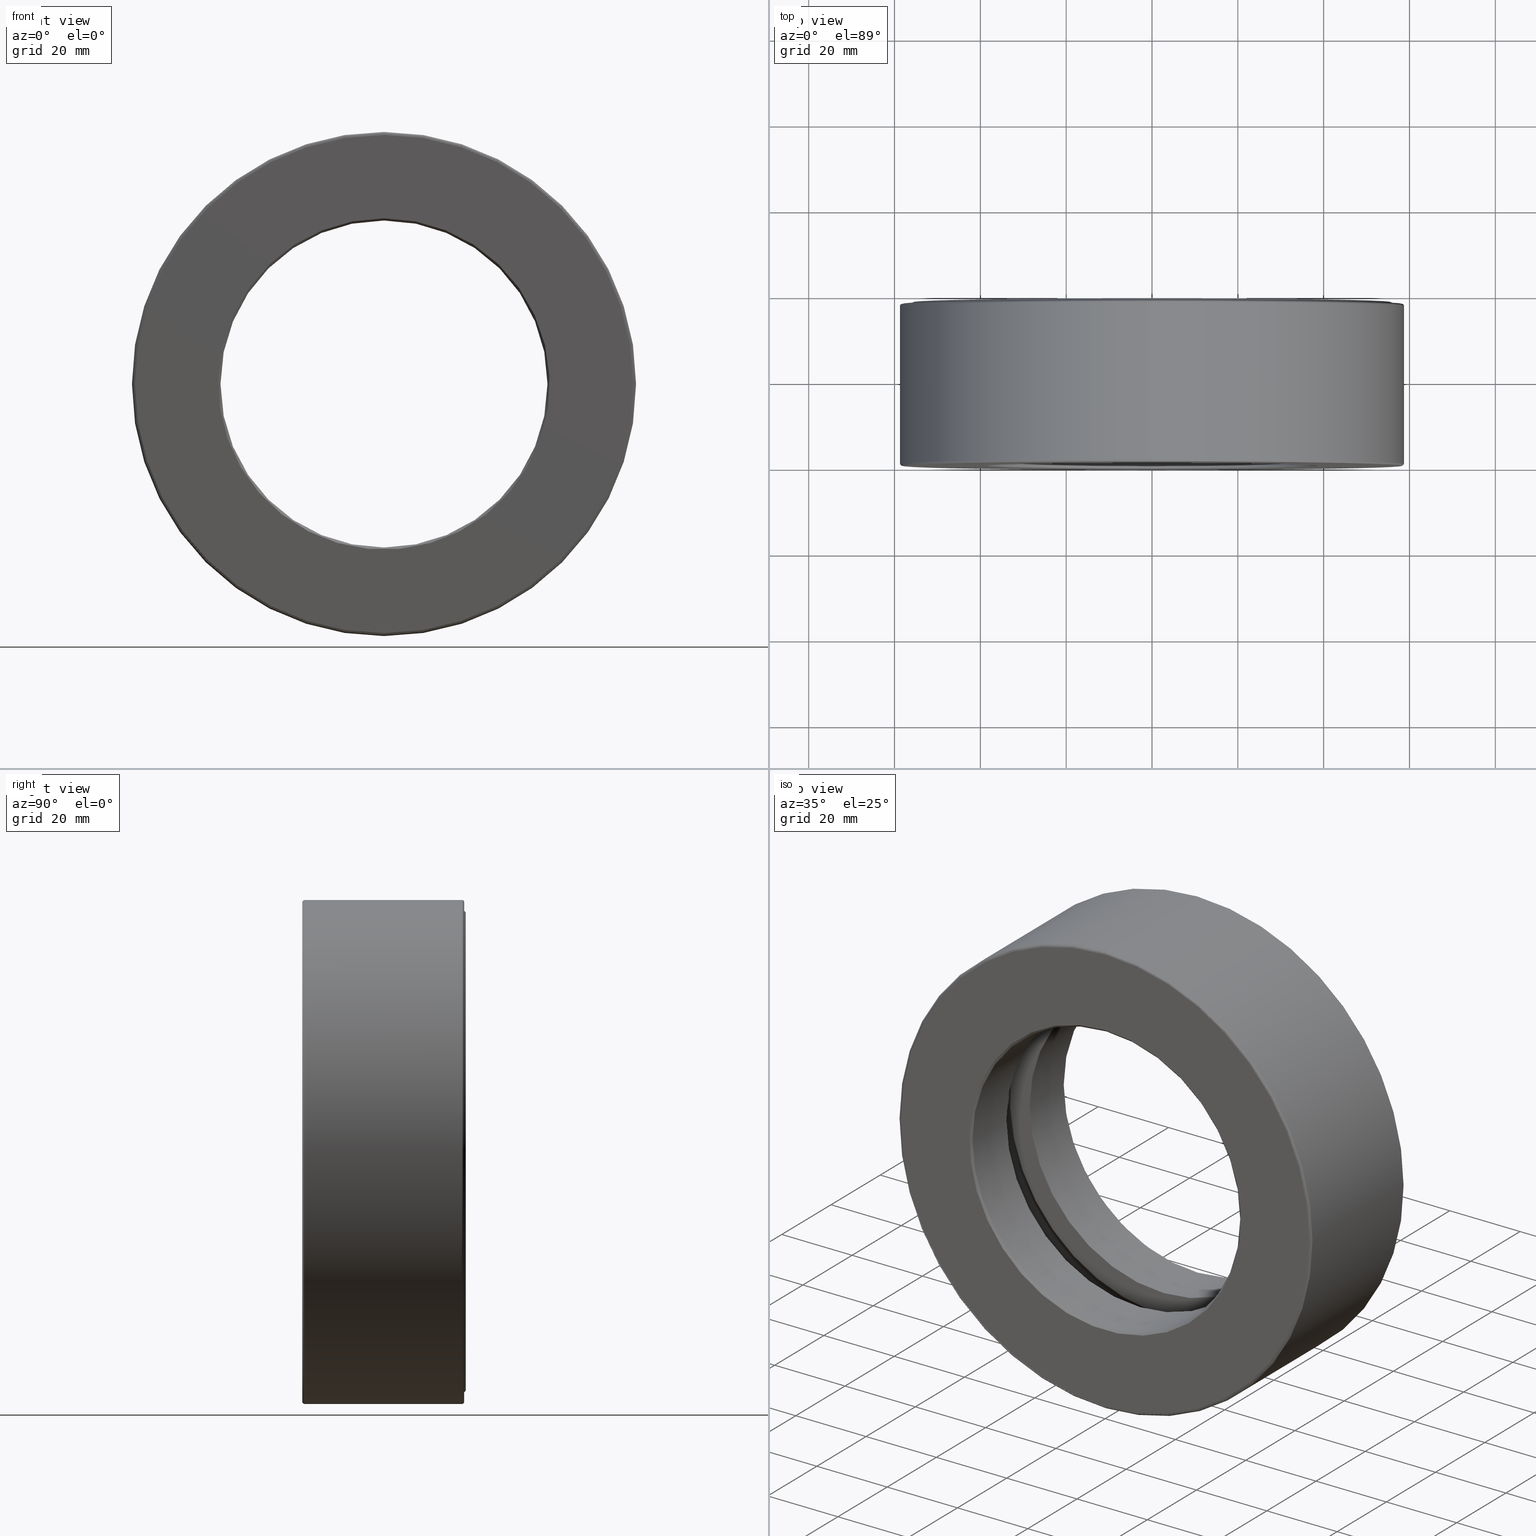
[diagram: canonical four-view strip — front | top / right | iso, engineering-drawing reading convention]
A machine part, canonical four-view strip (front | top / right | iso — engineering-drawing reading convention). The complete STEP part file that produces these views, byte-faithful:
ISO-10303-21;
HEADER;
FILE_DESCRIPTION (( 'STEP AP203' ),
    '1' );
FILE_NAME ('T-100-44.step',
    '2016-06-29T18:27:39',
    ( '' ),
    ( '' ),
    'SwSTEP 2.0',
    'SolidWorks 2016',
    '' );
FILE_SCHEMA (( 'CONFIG_CONTROL_DESIGN' ));
ENDSEC;

DATA;
#1 = APPROVAL_STATUS ( 'not_yet_approved' ) ;
#2 = CARTESIAN_POINT ( 'NONE',  ( 0.0000000000000000000, 1.464999999999999900, 0.0000000000000000000 ) ) ;
#3 = VERTEX_POINT ( 'NONE', #353 ) ;
#4 = VERTEX_POINT ( 'NONE', #88 ) ;
#5 = ORIENTED_EDGE ( 'NONE', *, *, #375, .T. ) ;
#6 = DESIGN_CONTEXT ( 'detailed design', #513, 'design' ) ;
#7 = AXIS2_PLACEMENT_3D ( 'NONE', #326, #370, #54 ) ;
#8 = MANIFOLD_SOLID_BREP ( 'Revolve3', #244 ) ;
#9 = FACE_BOUND ( 'NONE', #58, .T. ) ;
#10 = FACE_BOUND ( 'NONE', #459, .T. ) ;
#11 = CC_DESIGN_PERSON_AND_ORGANIZATION_ASSIGNMENT ( #533, #416, ( #201 ) ) ;
#12 = ORIENTED_EDGE ( 'NONE', *, *, #376, .T. ) ;
#13 = AXIS2_PLACEMENT_3D ( 'NONE', #74, #79, #82 ) ;
#14 = PERSON_AND_ORGANIZATION ( #343, #421 ) ;
#15 = FACE_OUTER_BOUND ( 'NONE', #413, .T. ) ;
#16 = EDGE_LOOP ( 'NONE', ( #5 ) ) ;
#17 = PLANE ( 'NONE',  #154 ) ;
#18 = EDGE_LOOP ( 'NONE', ( #267 ) ) ;
#19 = AXIS2_PLACEMENT_3D ( 'NONE', #312, #182, #395 ) ;
#20 = EDGE_LOOP ( 'NONE', ( #390 ) ) ;
#21 = PLANE ( 'NONE',  #112 ) ;
#22 = MANIFOLD_SOLID_BREP ( 'BALLS[1]', #469 ) ;
#23 = DIRECTION ( 'NONE',  ( 0.0000000000000000000, 0.0000000000000000000, 1.000000000000000000 ) ) ;
#24 = FACE_BOUND ( 'NONE', #292, .T. ) ;
#25 = TOROIDAL_SURFACE ( 'NONE', #593, 2.292500000000000000, 0.02000000000000005900 ) ;
#26 = EDGE_LOOP ( 'NONE', ( #235 ) ) ;
#27 = ORIENTED_EDGE ( 'NONE', *, *, #503, .F. ) ;
#28 = AXIS2_PLACEMENT_3D ( 'NONE', #507, #366, #553 ) ;
#29 = EDGE_CURVE ( 'NONE', #243, #243, #111, .T. ) ;
#30 = COORDINATED_UNIVERSAL_TIME_OFFSET ( 5, 0, .BEHIND. ) ;
#31 = DIRECTION ( 'NONE',  ( -0.0000000000000000000, 1.000000000000000000, -0.0000000000000000000 ) ) ;
#32 = FACE_BOUND ( 'NONE', #16, .T. ) ;
#33 = ORIENTED_EDGE ( 'NONE', *, *, #397, .T. ) ;
#34 = DIRECTION ( 'NONE',  ( -0.0000000000000000000, 1.000000000000000000, -0.0000000000000000000 ) ) ;
#35 = ADVANCED_FACE ( 'NONE', ( #529, #57 ), #114, .F. ) ;
#36 = CARTESIAN_POINT ( 'NONE',  ( 0.0000000000000000000, 1.500000000000000200, 2.197499999999999800 ) ) ;
#37 = ORIENTED_EDGE ( 'NONE', *, *, #29, .F. ) ;
#38 = AXIS2_PLACEMENT_3D ( 'NONE', #250, #335, #23 ) ;
#39 = APPLICATION_PROTOCOL_DEFINITION ( 'international standard', 'config_control_design', 1994, #393 ) ;
#40 = FACE_BOUND ( 'NONE', #523, .T. ) ;
#41 = CARTESIAN_POINT ( 'NONE',  ( 0.0000000000000000000, -1.252200340395746800E-016, 2.292499999999999500 ) ) ;
#42 = ORIENTED_EDGE ( 'NONE', *, *, #299, .F. ) ;
#43 = AXIS2_PLACEMENT_3D ( 'NONE', #266, #539, #591 ) ;
#44 = DIRECTION ( 'NONE',  ( 0.0000000000000000000, 0.0000000000000000000, 1.000000000000000000 ) ) ;
#45 = CARTESIAN_POINT ( 'NONE',  ( 0.0000000000000000000, -1.259211184579621700E-016, 0.0000000000000000000 ) ) ;
#46 = DIRECTION ( 'NONE',  ( -0.0000000000000000000, 1.000000000000000000, -0.0000000000000000000 ) ) ;
#47 = APPROVAL_DATE_TIME ( #453, #51 ) ;
#48 = DIRECTION ( 'NONE',  ( -0.0000000000000000000, 1.000000000000000000, -0.0000000000000000000 ) ) ;
#49 = VERTEX_POINT ( 'NONE', #77 ) ;
#50 = ORIENTED_EDGE ( 'NONE', *, *, #265, .T. ) ;
#51 = APPROVAL ( #322, 'UNSPECIFIED' ) ;
#52 = CARTESIAN_POINT ( 'NONE',  ( 0.0000000000000000000, 1.479999999999999300, 0.0000000000000000000 ) ) ;
#53 = EDGE_LOOP ( 'NONE', ( #368 ) ) ;
#54 = DIRECTION ( 'NONE',  ( 0.0000000000000000000, 0.0000000000000000000, -1.000000000000000000 ) ) ;
#55 = APPROVAL_PERSON_ORGANIZATION ( #209, #404, #501 ) ;
#56 = VERTEX_POINT ( 'NONE', #317 ) ;
#57 = FACE_BOUND ( 'NONE', #153, .T. ) ;
#58 = EDGE_LOOP ( 'NONE', ( #234 ) ) ;
#59 =( GEOMETRIC_REPRESENTATION_CONTEXT ( 3 ) GLOBAL_UNCERTAINTY_ASSIGNED_CONTEXT ( ( #515 ) ) GLOBAL_UNIT_ASSIGNED_CONTEXT ( ( #398, #130, #174 ) ) REPRESENTATION_CONTEXT ( 'NONE', 'WORKASPACE' ) );
#60 = LOCAL_TIME ( 14, 27, 39.00000000000000000, #427 ) ;
#61 = VERTEX_POINT ( 'NONE', #258 ) ;
#62 = EDGE_LOOP ( 'NONE', ( #12 ) ) ;
#63 = ORIENTED_EDGE ( 'NONE', *, *, #396, .T. ) ;
#64 = DIRECTION ( 'NONE',  ( 0.0000000000000000000, -1.000000000000000000, 0.0000000000000000000 ) ) ;
#65 = APPROVAL_DATE_TIME ( #470, #404 ) ;
#66 = EDGE_CURVE ( 'NONE', #61, #61, #333, .T. ) ;
#67 = EDGE_LOOP ( 'NONE', ( #138 ) ) ;
#68 = FACE_OUTER_BOUND ( 'NONE', #300, .T. ) ;
#69 = AXIS2_PLACEMENT_3D ( 'NONE', #565, #570, #475 ) ;
#70 = FACE_OUTER_BOUND ( 'NONE', #346, .T. ) ;
#71 = AXIS2_PLACEMENT_3D ( 'NONE', #256, #263, #536 ) ;
#72 = DIRECTION ( 'NONE',  ( 0.0000000000000000000, 0.0000000000000000000, 1.000000000000000000 ) ) ;
#73 = CARTESIAN_POINT ( 'NONE',  ( 0.0000000000000000000, 1.464999999999999900, 0.0000000000000000000 ) ) ;
#74 = CARTESIAN_POINT ( 'NONE',  ( 0.0000000000000000000, 0.0000000000000000000, 0.0000000000000000000 ) ) ;
#75 = PERSON_AND_ORGANIZATION ( #343, #421 ) ;
#76 = FACE_OUTER_BOUND ( 'NONE', #506, .T. ) ;
#77 = CARTESIAN_POINT ( 'NONE',  ( 0.0000000000000000000, 0.9374999999999998900, 1.720999999999999900 ) ) ;
#78 = AXIS2_PLACEMENT_3D ( 'NONE', #384, #576, #304 ) ;
#79 = DIRECTION ( 'NONE',  ( -0.0000000000000000000, 1.000000000000000000, -0.0000000000000000000 ) ) ;
#80 = CARTESIAN_POINT ( 'NONE',  ( 0.0000000000000000000, 1.500000000000000200, 1.520000000000000500 ) ) ;
#81 = ADVANCED_FACE ( 'NONE', ( ), #288, .T. ) ;
#82 = DIRECTION ( 'NONE',  ( 0.0000000000000000000, 0.0000000000000000000, 1.000000000000000000 ) ) ;
#83 = CARTESIAN_POINT ( 'NONE',  ( 0.0000000000000000000, -1.259211184579621700E-016, 2.297499999999999900 ) ) ;
#84 = AXIS2_PLACEMENT_3D ( 'NONE', #573, #342, #113 ) ;
#85 = VERTEX_POINT ( 'NONE', #80 ) ;
#86 = DIRECTION ( 'NONE',  ( 0.0000000000000000000, 0.0000000000000000000, 1.000000000000000000 ) ) ;
#87 = FACE_OUTER_BOUND ( 'NONE', #444, .T. ) ;
#88 = CARTESIAN_POINT ( 'NONE',  ( 0.0000000000000000000, 0.9374999999999998900, 2.221000000000000100 ) ) ;
#89 = DIRECTION ( 'NONE',  ( -0.0000000000000000000, 1.000000000000000000, -0.0000000000000000000 ) ) ;
#90 = CC_DESIGN_PERSON_AND_ORGANIZATION_ASSIGNMENT ( #155, #464, ( #568 ) ) ;
#91 = DIRECTION ( 'NONE',  ( 0.0000000000000000000, 0.0000000000000000000, 1.000000000000000000 ) ) ;
#92 = APPROVAL_ROLE ( '' ) ;
#93 = DIRECTION ( 'NONE',  ( -0.0000000000000000000, 1.000000000000000000, -0.0000000000000000000 ) ) ;
#94 = ADVANCED_FACE ( 'NONE', ( #405, #592 ), #480, .F. ) ;
#95 = SECURITY_CLASSIFICATION_LEVEL ( 'unclassified' ) ;
#96 = FACE_OUTER_BOUND ( 'NONE', #229, .T. ) ;
#97 = ADVANCED_FACE ( 'NONE', ( #485, #544 ), #339, .F. ) ;
#98 = DATE_TIME_ROLE ( 'classification_date' ) ;
#99 = CALENDAR_DATE ( 2016, 29, 6 ) ;
#100 = FACE_OUTER_BOUND ( 'NONE', #581, .T. ) ;
#101 = EDGE_LOOP ( 'NONE', ( #284 ) ) ;
#102 = ORIENTED_EDGE ( 'NONE', *, *, #336, .F. ) ;
#103 = AXIS2_PLACEMENT_3D ( 'NONE', #220, #89, #450 ) ;
#104 = VERTEX_POINT ( 'NONE', #169 ) ;
#105 = ORIENTED_EDGE ( 'NONE', *, *, #29, .T. ) ;
#106 = ORIENTED_EDGE ( 'NONE', *, *, #584, .F. ) ;
#107 = EDGE_LOOP ( 'NONE', ( #571 ) ) ;
#108 = DIRECTION ( 'NONE',  ( -0.0000000000000000000, 1.000000000000000000, 0.0000000000000000000 ) ) ;
#109 = DIRECTION ( 'NONE',  ( 0.0000000000000000000, -0.0000000000000000000, -1.000000000000000000 ) ) ;
#110 = CIRCLE ( 'NONE', #197, 2.197499999999999800 ) ;
#111 = CIRCLE ( 'NONE', #38, 2.292499999999999500 ) ;
#112 = AXIS2_PLACEMENT_3D ( 'NONE', #526, #301, #72 ) ;
#113 = DIRECTION ( 'NONE',  ( 0.0000000000000000000, -0.0000000000000000000, -1.000000000000000000 ) ) ;
#114 = PLANE ( 'NONE',  #249 ) ;
#115 = CC_DESIGN_DATE_AND_TIME_ASSIGNMENT ( #193, #144, ( #582 ) ) ;
#116 = CONICAL_SURFACE ( 'NONE', #239, 1.500000000000000200, 0.7853981633974346200 ) ;
#117 = CYLINDRICAL_SURFACE ( 'NONE', #13, 2.285499999999999400 ) ;
#118 = DIRECTION ( 'NONE',  ( -0.0000000000000000000, 1.000000000000000000, -0.0000000000000000000 ) ) ;
#119 = MANIFOLD_SOLID_BREP ( 'Revolve2[2]', #338 ) ;
#120 = AXIS2_PLACEMENT_3D ( 'NONE', #406, #355, #123 ) ;
#121 = DIRECTION ( 'NONE',  ( 0.0000000000000000000, 0.0000000000000000000, 1.000000000000000000 ) ) ;
#122 = DIRECTION ( 'NONE',  ( -0.0000000000000000000, 1.000000000000000000, -0.0000000000000000000 ) ) ;
#123 = DIRECTION ( 'NONE',  ( 1.000000000000000000, 0.0000000000000000000, 0.0000000000000000000 ) ) ;
#124 = CARTESIAN_POINT ( 'NONE',  ( 0.0000000000000000000, 0.005000000000000682700, 0.0000000000000000000 ) ) ;
#125 = CIRCLE ( 'NONE', #211, 1.500000000000000200 ) ;
#126 = EDGE_LOOP ( 'NONE', ( #157 ) ) ;
#127 = CARTESIAN_POINT ( 'NONE',  ( 0.0000000000000000000, 1.464999999999999900, 2.312500000000000000 ) ) ;
#128 = CIRCLE ( 'NONE', #103, 1.499999999999999800 ) ;
#129 = CARTESIAN_POINT ( 'NONE',  ( 1.970999999999999900, 0.7499999999999998900, -1.376341943771963100E-014 ) ) ;
#130 =( NAMED_UNIT ( * ) PLANE_ANGLE_UNIT ( ) SI_UNIT ( $, .RADIAN. ) );
#131 = ADVANCED_FACE ( 'NONE', ( #329, #315 ), #17, .F. ) ;
#132 = PRODUCT_RELATED_PRODUCT_CATEGORY ( 'detail', '', ( #527 ) ) ;
#133 = DIRECTION ( 'NONE',  ( 6.982962677686269100E-015, -0.0000000000000000000, 1.000000000000000000 ) ) ;
#134 = CARTESIAN_POINT ( 'NONE',  ( 0.0000000000000000000, 1.464999999999999900, 0.0000000000000000000 ) ) ;
#135 = ADVANCED_FACE ( 'NONE', ( #569, #96 ), #340, .F. ) ;
#136 = AXIS2_PLACEMENT_3D ( 'NONE', #435, #307, #392 ) ;
#137 = FACE_OUTER_BOUND ( 'NONE', #252, .T. ) ;
#138 = ORIENTED_EDGE ( 'NONE', *, *, #584, .T. ) ;
#139 = ADVANCED_FACE ( 'NONE', ( #298, #382 ), #21, .T. ) ;
#140 = DIRECTION ( 'NONE',  ( -0.0000000000000000000, 1.000000000000000000, -0.0000000000000000000 ) ) ;
#141 = ORIENTED_EDGE ( 'NONE', *, *, #299, .T. ) ;
#142 = CC_DESIGN_DATE_AND_TIME_ASSIGNMENT ( #541, #98, ( #201 ) ) ;
#143 = DIRECTION ( 'NONE',  ( 0.0000000000000000000, 0.0000000000000000000, 1.000000000000000000 ) ) ;
#144 = DATE_TIME_ROLE ( 'creation_date' ) ;
#145 = COORDINATED_UNIVERSAL_TIME_OFFSET ( 5, 0, .BEHIND. ) ;
#146 = CIRCLE ( 'NONE', #387, 2.232499999999999900 ) ;
#147 = EDGE_LOOP ( 'NONE', ( #468 ) ) ;
#148 = DIRECTION ( 'NONE',  ( 0.0000000000000000000, 0.0000000000000000000, 1.000000000000000000 ) ) ;
#149 = ORIENTED_EDGE ( 'NONE', *, *, #397, .F. ) ;
#150 = AXIS2_PLACEMENT_3D ( 'NONE', #436, #212, #208 ) ;
#151 = TOROIDAL_SURFACE ( 'NONE', #296, 1.970999999999999900, 0.3125000000000000600 ) ;
#152 = CC_DESIGN_APPROVAL ( #404, ( #201 ) ) ;
#153 = EDGE_LOOP ( 'NONE', ( #50 ) ) ;
#154 = AXIS2_PLACEMENT_3D ( 'NONE', #521, #64, #109 ) ;
#155 = PERSON_AND_ORGANIZATION ( #343, #421 ) ;
#156 = VERTEX_POINT ( 'NONE', #391 ) ;
#157 = ORIENTED_EDGE ( 'NONE', *, *, #176, .T. ) ;
#158 = DIRECTION ( 'NONE',  ( 0.0000000000000000000, 0.0000000000000000000, 1.000000000000000000 ) ) ;
#159 = DIRECTION ( 'NONE',  ( 0.0000000000000000000, 0.0000000000000000000, -1.000000000000000000 ) ) ;
#160 = CARTESIAN_POINT ( 'NONE',  ( 0.0000000000000000000, 0.0000000000000000000, 0.0000000000000000000 ) ) ;
#161 = DIRECTION ( 'NONE',  ( -0.0000000000000000000, 1.000000000000000000, -0.0000000000000000000 ) ) ;
#162 = EDGE_LOOP ( 'NONE', ( #262 ) ) ;
#163 = AXIS2_PLACEMENT_3D ( 'NONE', #124, #254, #259 ) ;
#164 = CARTESIAN_POINT ( 'NONE',  ( 0.0000000000000000000, -1.252200340395746800E-016, 0.0000000000000000000 ) ) ;
#165 = DIRECTION ( 'NONE',  ( 0.0000000000000000000, 0.0000000000000000000, 1.000000000000000000 ) ) ;
#166 = LOCAL_TIME ( 14, 27, 39.00000000000000000, #588 ) ;
#167 = CONICAL_SURFACE ( 'NONE', #43, 1.499999999999999800, 0.7853981633974278500 ) ;
#168 = ORIENTED_EDGE ( 'NONE', *, *, #408, .T. ) ;
#169 = CARTESIAN_POINT ( 'NONE',  ( 0.0000000000000000000, 1.479999999999999300, 1.500000000000000200 ) ) ;
#170 = APPROVAL ( #1, 'UNSPECIFIED' ) ;
#171 = CARTESIAN_POINT ( 'NONE',  ( 0.0000000000000000000, 0.0000000000000000000, 0.0000000000000000000 ) ) ;
#172 = EDGE_CURVE ( 'NONE', #477, #477, #519, .T. ) ;
#173 = CARTESIAN_POINT ( 'NONE',  ( 0.0000000000000000000, 0.0000000000000000000, 0.0000000000000000000 ) ) ;
#174 =( NAMED_UNIT ( * ) SI_UNIT ( $, .STERADIAN. ) SOLID_ANGLE_UNIT ( ) );
#175 = AXIS2_PLACEMENT_3D ( 'NONE', #486, #118, #121 ) ;
#176 = EDGE_CURVE ( 'NONE', #350, #350, #479, .T. ) ;
#177 = CARTESIAN_POINT ( 'NONE',  ( 0.0000000000000000000, 0.7499999999999998900, 0.0000000000000000000 ) ) ;
#178 = CALENDAR_DATE ( 2016, 29, 6 ) ;
#179 = FACE_BOUND ( 'NONE', #62, .T. ) ;
#180 = CARTESIAN_POINT ( 'NONE',  ( 0.0000000000000000000, 0.0000000000000000000, 1.519999999999999800 ) ) ;
#181 = FACE_BOUND ( 'NONE', #26, .T. ) ;
#182 = DIRECTION ( 'NONE',  ( -0.0000000000000000000, 1.000000000000000000, -0.0000000000000000000 ) ) ;
#183 = DIRECTION ( 'NONE',  ( 0.0000000000000000000, 0.0000000000000000000, 1.000000000000000000 ) ) ;
#184 = EDGE_LOOP ( 'NONE', ( #289 ) ) ;
#185 = ADVANCED_FACE ( 'NONE', ( #419, #203 ), #352, .T. ) ;
#186 = DIRECTION ( 'NONE',  ( 0.0000000000000000000, 0.0000000000000000000, 1.000000000000000000 ) ) ;
#187 = AXIS2_PLACEMENT_3D ( 'NONE', #129, #133, #268 ) ;
#188 = DIRECTION ( 'NONE',  ( 0.0000000000000000000, 0.0000000000000000000, 1.000000000000000000 ) ) ;
#189 = CIRCLE ( 'NONE', #306, 2.221000000000000100 ) ;
#190 = ORIENTED_EDGE ( 'NONE', *, *, #559, .T. ) ;
#191 = DIRECTION ( 'NONE',  ( -0.0000000000000000000, 1.000000000000000000, -0.0000000000000000000 ) ) ;
#192 = ORIENTED_EDGE ( 'NONE', *, *, #376, .F. ) ;
#193 = DATE_AND_TIME ( #178, #558 ) ;
#194 = CIRCLE ( 'NONE', #19, 1.720999999999999900 ) ;
#195 = FACE_OUTER_BOUND ( 'NONE', #147, .T. ) ;
#196 = EDGE_LOOP ( 'NONE', ( #425 ) ) ;
#197 = AXIS2_PLACEMENT_3D ( 'NONE', #361, #596, #225 ) ;
#198 = APPROVAL_PERSON_ORGANIZATION ( #466, #51, #411 ) ;
#199 = ORIENTED_EDGE ( 'NONE', *, *, #505, .T. ) ;
#200 = CARTESIAN_POINT ( 'NONE',  ( -1.074590556948366800E-015, 0.5624999999999998900, 0.0000000000000000000 ) ) ;
#201 = SECURITY_CLASSIFICATION ( '', '', #95 ) ;
#202 = CIRCLE ( 'NONE', #517, 2.312500000000000000 ) ;
#203 = FACE_OUTER_BOUND ( 'NONE', #478, .T. ) ;
#204 = AXIS2_PLACEMENT_3D ( 'NONE', #309, #348, #303 ) ;
#205 = ORIENTED_EDGE ( 'NONE', *, *, #245, .F. ) ;
#206 = ORIENTED_EDGE ( 'NONE', *, *, #172, .F. ) ;
#207 = EDGE_LOOP ( 'NONE', ( #37 ) ) ;
#208 = DIRECTION ( 'NONE',  ( 0.0000000000000000000, 0.0000000000000000000, 1.000000000000000000 ) ) ;
#209 = PERSON_AND_ORGANIZATION ( #343, #421 ) ;
#210 = FACE_BOUND ( 'NONE', #53, .T. ) ;
#211 = AXIS2_PLACEMENT_3D ( 'NONE', #465, #606, #364 ) ;
#212 = DIRECTION ( 'NONE',  ( -0.0000000000000000000, 1.000000000000000000, -0.0000000000000000000 ) ) ;
#213 = CARTESIAN_POINT ( 'NONE',  ( 0.0000000000000000000, 1.484999999999999900, 0.0000000000000000000 ) ) ;
#214 = DIRECTION ( 'NONE',  ( -0.0000000000000000000, 1.000000000000000000, -0.0000000000000000000 ) ) ;
#215 = DIRECTION ( 'NONE',  ( 0.0000000000000000000, 0.0000000000000000000, 1.000000000000000000 ) ) ;
#216 = CARTESIAN_POINT ( 'NONE',  ( 0.0000000000000000000, 0.7499999999999998900, 0.0000000000000000000 ) ) ;
#217 = DATE_AND_TIME ( #365, #230 ) ;
#218 = ADVANCED_FACE ( 'NONE', ( #455, #210 ), #359, .T. ) ;
#219 = CYLINDRICAL_SURFACE ( 'NONE', #363, 2.232499999999999900 ) ;
#220 = CARTESIAN_POINT ( 'NONE',  ( 0.0000000000000000000, 0.02000000000000087800, 0.0000000000000000000 ) ) ;
#221 = EDGE_LOOP ( 'NONE', ( #42 ) ) ;
#222 = FACE_OUTER_BOUND ( 'NONE', #575, .T. ) ;
#223 = AXIS2_PLACEMENT_3D ( 'NONE', #134, #448, #186 ) ;
#224 = ADVANCED_FACE ( 'NONE', ( #276, #222 ), #25, .T. ) ;
#225 = DIRECTION ( 'NONE',  ( 0.0000000000000000000, 0.0000000000000000000, 1.000000000000000000 ) ) ;
#226 = SPHERICAL_SURFACE ( 'NONE', #136, 0.3125000000000000000 ) ;
#227 = CARTESIAN_POINT ( 'NONE',  ( 0.0000000000000000000, 1.500000000000000200, 0.0000000000000000000 ) ) ;
#228 = CARTESIAN_POINT ( 'NONE',  ( 0.0000000000000000000, 1.464999999999999900, 0.0000000000000000000 ) ) ;
#229 = EDGE_LOOP ( 'NONE', ( #285 ) ) ;
#230 = LOCAL_TIME ( 14, 27, 39.00000000000000000, #441 ) ;
#231 = CIRCLE ( 'NONE', #461, 2.285499999999999400 ) ;
#232 = EDGE_LOOP ( 'NONE', ( #149 ) ) ;
#233 = CIRCLE ( 'NONE', #163, 2.292499999999999500 ) ;
#234 = ORIENTED_EDGE ( 'NONE', *, *, #555, .T. ) ;
#235 = ORIENTED_EDGE ( 'NONE', *, *, #525, .T. ) ;
#236 = EDGE_LOOP ( 'NONE', ( #105 ) ) ;
#237 = CIRCLE ( 'NONE', #604, 2.312500000000000000 ) ;
#238 = CIRCLE ( 'NONE', #531, 2.292499999999999500 ) ;
#239 = AXIS2_PLACEMENT_3D ( 'NONE', #52, #458, #188 ) ;
#240 = VERTEX_POINT ( 'NONE', #127 ) ;
#241 = DIRECTION ( 'NONE',  ( 0.0000000000000000000, 0.0000000000000000000, 1.000000000000000000 ) ) ;
#242 = PRODUCT_DEFINITION_SHAPE ( 'NONE', 'NONE',  #582 ) ;
#243 = VERTEX_POINT ( 'NONE', #537 ) ;
#244 = CLOSED_SHELL ( 'NONE', ( #81 ) ) ;
#245 = EDGE_CURVE ( 'NONE', #56, #56, #233, .T. ) ;
#246 = CARTESIAN_POINT ( 'NONE',  ( -2.750387431685207200E-032, -1.255705762487684200E-016, 0.0000000000000000000 ) ) ;
#247 = CARTESIAN_POINT ( 'NONE',  ( 0.0000000000000000000, 0.0000000000000000000, 0.0000000000000000000 ) ) ;
#248 = ORIENTED_EDGE ( 'NONE', *, *, #408, .F. ) ;
#249 = AXIS2_PLACEMENT_3D ( 'NONE', #246, #108, #158 ) ;
#250 = CARTESIAN_POINT ( 'NONE',  ( 0.0000000000000000000, 0.5624999999999998900, 0.0000000000000000000 ) ) ;
#251 = CIRCLE ( 'NONE', #546, 1.519999999999999800 ) ;
#252 = EDGE_LOOP ( 'NONE', ( #168 ) ) ;
#253 = AXIS2_PLACEMENT_3D ( 'NONE', #227, #93, #494 ) ;
#254 = DIRECTION ( 'NONE',  ( -0.0000000000000000000, 1.000000000000000000, -0.0000000000000000000 ) ) ;
#255 = ORIENTED_EDGE ( 'NONE', *, *, #396, .F. ) ;
#256 = CARTESIAN_POINT ( 'NONE',  ( -2.064512915657944700E-014, 0.7499999999999998900, -1.970999999999999900 ) ) ;
#257 = CC_DESIGN_SECURITY_CLASSIFICATION ( #201, ( #568 ) ) ;
#258 = CARTESIAN_POINT ( 'NONE',  ( 0.0000000000000000000, -1.248539903354370400E-016, 2.287499999999999600 ) ) ;
#259 = DIRECTION ( 'NONE',  ( 0.0000000000000000000, 0.0000000000000000000, 1.000000000000000000 ) ) ;
#260 = CIRCLE ( 'NONE', #420, 2.285499999999999400 ) ;
#261 = EDGE_LOOP ( 'NONE', ( #473 ) ) ;
#262 = ORIENTED_EDGE ( 'NONE', *, *, #375, .F. ) ;
#263 = DIRECTION ( 'NONE',  ( 1.000000000000000000, 0.0000000000000000000, -1.047444401652940000E-014 ) ) ;
#264 = ADVANCED_FACE ( 'NONE', ( #87, #434 ), #602, .F. ) ;
#265 = EDGE_CURVE ( 'NONE', #297, #297, #238, .T. ) ;
#266 = CARTESIAN_POINT ( 'NONE',  ( 0.0000000000000000000, 0.02000000000000087800, 0.0000000000000000000 ) ) ;
#267 = ORIENTED_EDGE ( 'NONE', *, *, #555, .F. ) ;
#268 = DIRECTION ( 'NONE',  ( -1.000000000000000000, 0.0000000000000000000, 6.982962677686269100E-015 ) ) ;
#269 = DIRECTION ( 'NONE',  ( 0.0000000000000000000, 0.0000000000000000000, 1.000000000000000000 ) ) ;
#270 = AXIS2_PLACEMENT_3D ( 'NONE', #543, #445, #272 ) ;
#271 = ADVANCED_FACE ( 'NONE', ( ), #430, .T. ) ;
#272 = DIRECTION ( 'NONE',  ( 0.0000000000000000000, 0.0000000000000000000, 1.000000000000000000 ) ) ;
#273 = MECHANICAL_CONTEXT ( 'NONE', #393, 'mechanical' ) ;
#274 = VERTEX_POINT ( 'NONE', #308 ) ;
#275 = CARTESIAN_POINT ( 'NONE',  ( 0.0000000000000000000, 0.01499999999999997700, 0.0000000000000000000 ) ) ;
#276 = FACE_OUTER_BOUND ( 'NONE', #184, .T. ) ;
#277 = ADVANCED_FACE ( 'NONE', ( #305, #10 ), #583, .F. ) ;
#278 = DIRECTION ( 'NONE',  ( 0.0000000000000000000, 0.0000000000000000000, 1.000000000000000000 ) ) ;
#279 = AXIS2_PLACEMENT_3D ( 'NONE', #388, #122, #578 ) ;
#280 = DIRECTION ( 'NONE',  ( -0.0000000000000000000, 1.000000000000000000, -0.0000000000000000000 ) ) ;
#281 = ADVANCED_FACE ( 'NONE', ( ), #226, .T. ) ;
#282 = PERSON_AND_ORGANIZATION ( #343, #421 ) ;
#283 = CIRCLE ( 'NONE', #253, 1.520000000000000500 ) ;
#284 = ORIENTED_EDGE ( 'NONE', *, *, #66, .F. ) ;
#285 = ORIENTED_EDGE ( 'NONE', *, *, #172, .T. ) ;
#286 = CLOSED_SHELL ( 'NONE', ( #271 ) ) ;
#287 = SHAPE_DEFINITION_REPRESENTATION ( #242, #399 ) ;
#288 = SPHERICAL_SURFACE ( 'NONE', #293, 0.3125000000000000000 ) ;
#289 = ORIENTED_EDGE ( 'NONE', *, *, #559, .F. ) ;
#290 = LENGTH_MEASURE_WITH_UNIT ( LENGTH_MEASURE( 0.02539999999999999900 ), #438 );
#291 = VERTEX_POINT ( 'NONE', #36 ) ;
#292 = EDGE_LOOP ( 'NONE', ( #255 ) ) ;
#293 = AXIS2_PLACEMENT_3D ( 'NONE', #294, #159, #474 ) ;
#294 = CARTESIAN_POINT ( 'NONE',  ( -1.970999999999999900, 0.7499999999999998900, 0.0000000000000000000 ) ) ;
#295 = APPROVAL_PERSON_ORGANIZATION ( #282, #170, #92 ) ;
#296 = AXIS2_PLACEMENT_3D ( 'NONE', #216, #34, #400 ) ;
#297 = VERTEX_POINT ( 'NONE', #41 ) ;
#298 = FACE_OUTER_BOUND ( 'NONE', #386, .T. ) ;
#299 = EDGE_CURVE ( 'NONE', #389, #389, #499, .T. ) ;
#300 = EDGE_LOOP ( 'NONE', ( #192 ) ) ;
#301 = DIRECTION ( 'NONE',  ( -0.0000000000000000000, 1.000000000000000000, 0.0000000000000000000 ) ) ;
#302 = ORIENTED_EDGE ( 'NONE', *, *, #532, .F. ) ;
#303 = DIRECTION ( 'NONE',  ( 0.0000000000000000000, 0.0000000000000000000, 1.000000000000000000 ) ) ;
#304 = DIRECTION ( 'NONE',  ( 0.0000000000000000000, 0.0000000000000000000, 1.000000000000000000 ) ) ;
#305 = FACE_OUTER_BOUND ( 'NONE', #101, .T. ) ;
#306 = AXIS2_PLACEMENT_3D ( 'NONE', #504, #440, #278 ) ;
#307 = DIRECTION ( 'NONE',  ( -1.000000000000000000, 0.0000000000000000000, 3.491481338843134500E-015 ) ) ;
#308 = CARTESIAN_POINT ( 'NONE',  ( 0.0000000000000000000, 0.9375000000000000000, 2.285499999999999400 ) ) ;
#309 = CARTESIAN_POINT ( 'NONE',  ( 0.0000000000000000000, -1.259211184579621700E-016, 0.0000000000000000000 ) ) ;
#310 = CARTESIAN_POINT ( 'NONE',  ( 0.0000000000000000000, 1.464999999999999900, 0.0000000000000000000 ) ) ;
#311 = CARTESIAN_POINT ( 'NONE',  ( 0.0000000000000000000, 0.02000000000000087800, 1.499999999999999800 ) ) ;
#312 = CARTESIAN_POINT ( 'NONE',  ( 0.0000000000000000000, 0.9374999999999998900, 0.0000000000000000000 ) ) ;
#313 = ADVANCED_FACE ( 'NONE', ( #195, #70 ), #117, .T. ) ;
#314 = CONICAL_SURFACE ( 'NONE', #7, 2.197499999999999800, 0.7853981633974498300 ) ;
#315 = FACE_OUTER_BOUND ( 'NONE', #351, .T. ) ;
#316 = CARTESIAN_POINT ( 'NONE',  ( 0.0000000000000000000, 0.0000000000000000000, 0.0000000000000000000 ) ) ;
#317 = CARTESIAN_POINT ( 'NONE',  ( 0.0000000000000000000, 0.005000000000000682700, 2.292499999999999500 ) ) ;
#318 = ADVANCED_FACE ( 'NONE', ( #181, #471 ), #538, .T. ) ;
#319 = AXIS2_PLACEMENT_3D ( 'NONE', #160, #566, #241 ) ;
#320 = VERTEX_POINT ( 'NONE', #545 ) ;
#321 = FACE_OUTER_BOUND ( 'NONE', #196, .T. ) ;
#322 = APPROVAL_STATUS ( 'not_yet_approved' ) ;
#323 = CARTESIAN_POINT ( 'NONE',  ( 0.0000000000000000000, 0.9375000000000000000, 0.0000000000000000000 ) ) ;
#324 = MANIFOLD_SOLID_BREP ( 'BALLS[3]', #286 ) ;
#325 = DIRECTION ( 'NONE',  ( -0.0000000000000000000, 1.000000000000000000, -0.0000000000000000000 ) ) ;
#326 = CARTESIAN_POINT ( 'NONE',  ( 0.0000000000000000000, 1.500000000000000200, 0.0000000000000000000 ) ) ;
#327 = CALENDAR_DATE ( 2016, 29, 6 ) ;
#328 = FACE_OUTER_BOUND ( 'NONE', #594, .T. ) ;
#329 = FACE_BOUND ( 'NONE', #423, .T. ) ;
#330 = EDGE_LOOP ( 'NONE', ( #248 ) ) ;
#331 = ORIENTED_EDGE ( 'NONE', *, *, #505, .F. ) ;
#332 = PERSON_AND_ORGANIZATION ( #343, #421 ) ;
#333 = CIRCLE ( 'NONE', #69, 2.287499999999999600 ) ;
#334 = AXIS2_PLACEMENT_3D ( 'NONE', #45, #140, #91 ) ;
#335 = DIRECTION ( 'NONE',  ( -0.0000000000000000000, 1.000000000000000000, -0.0000000000000000000 ) ) ;
#336 = EDGE_CURVE ( 'NONE', #381, #381, #345, .T. ) ;
#337 = VERTEX_POINT ( 'NONE', #488 ) ;
#338 = CLOSED_SHELL ( 'NONE', ( #497, #360, #318, #585, #547, #139, #540, #313 ) ) ;
#339 = CYLINDRICAL_SURFACE ( 'NONE', #319, 2.292499999999999500 ) ;
#340 = PLANE ( 'NONE',  #84 ) ;
#341 = EDGE_LOOP ( 'NONE', ( #206 ) ) ;
#342 = DIRECTION ( 'NONE',  ( 0.0000000000000000000, -1.000000000000000000, 0.0000000000000000000 ) ) ;
#343 = PERSON ( 'UNSPECIFIED', 'UNSPECIFIED', 'UNSPECIFIED', ('UNSPECIFIED'), ('UNSPECIFIED'), ('UNSPECIFIED') ) ;
#344 = DIRECTION ( 'NONE',  ( -0.0000000000000000000, 1.000000000000000000, -0.0000000000000000000 ) ) ;
#345 = CIRCLE ( 'NONE', #223, 2.292499999999999500 ) ;
#346 = EDGE_LOOP ( 'NONE', ( #106 ) ) ;
#347 = CARTESIAN_POINT ( 'NONE',  ( 0.0000000000000000000, 0.5625000000000001100, 1.500000000000000200 ) ) ;
#348 = DIRECTION ( 'NONE',  ( -0.0000000000000000000, 1.000000000000000000, -0.0000000000000000000 ) ) ;
#349 = CARTESIAN_POINT ( 'NONE',  ( 0.0000000000000000000, 0.5624999999999998900, 2.221000000000000100 ) ) ;
#350 = VERTEX_POINT ( 'NONE', #349 ) ;
#351 = EDGE_LOOP ( 'NONE', ( #190 ) ) ;
#352 = CYLINDRICAL_SURFACE ( 'NONE', #472, 2.312500000000000000 ) ;
#353 = CARTESIAN_POINT ( 'NONE',  ( 0.0000000000000000000, 1.484999999999999900, 2.292500000000000000 ) ) ;
#354 = DIRECTION ( 'NONE',  ( -0.0000000000000000000, 1.000000000000000000, -0.0000000000000000000 ) ) ;
#355 = DIRECTION ( 'NONE',  ( 0.0000000000000000000, 0.0000000000000000000, 1.000000000000000000 ) ) ;
#356 = AXIS2_PLACEMENT_3D ( 'NONE', #316, #496, #548 ) ;
#357 = ORIENTED_EDGE ( 'NONE', *, *, #415, .T. ) ;
#358 = VERTEX_POINT ( 'NONE', #446 ) ;
#359 = CONICAL_SURFACE ( 'NONE', #150, 2.287499999999999600, 0.7853981633973758900 ) ;
#360 = ADVANCED_FACE ( 'NONE', ( #76, #561 ), #151, .F. ) ;
#361 = CARTESIAN_POINT ( 'NONE',  ( 0.0000000000000000000, 1.500000000000000200, 0.0000000000000000000 ) ) ;
#362 = ADVANCED_FACE ( 'NONE', ( ), #373, .T. ) ;
#363 = AXIS2_PLACEMENT_3D ( 'NONE', #173, #600, #86 ) ;
#364 = DIRECTION ( 'NONE',  ( 0.0000000000000000000, 0.0000000000000000000, 1.000000000000000000 ) ) ;
#365 = CALENDAR_DATE ( 2016, 29, 6 ) ;
#366 = DIRECTION ( 'NONE',  ( -0.0000000000000000000, 1.000000000000000000, -0.0000000000000000000 ) ) ;
#367 = FACE_OUTER_BOUND ( 'NONE', #451, .T. ) ;
#368 = ORIENTED_EDGE ( 'NONE', *, *, #66, .T. ) ;
#369 = PERSON_AND_ORGANIZATION_ROLE ( 'creator' ) ;
#370 = DIRECTION ( 'NONE',  ( 0.0000000000000000000, -1.000000000000000000, 0.0000000000000000000 ) ) ;
#371 = CC_DESIGN_PERSON_AND_ORGANIZATION_ASSIGNMENT ( #75, #369, ( #582 ) ) ;
#372 = FACE_OUTER_BOUND ( 'NONE', #476, .T. ) ;
#373 = SPHERICAL_SURFACE ( 'NONE', #187, 0.3125000000000000000 ) ;
#374 = AXIS2_PLACEMENT_3D ( 'NONE', #587, #431, #482 ) ;
#375 = EDGE_CURVE ( 'NONE', #4, #4, #189, .T. ) ;
#376 = EDGE_CURVE ( 'NONE', #534, #534, #128, .T. ) ;
#377 = TOROIDAL_SURFACE ( 'NONE', #554, 1.970999999999999900, 0.3125000000000000000 ) ;
#378 = ORIENTED_EDGE ( 'NONE', *, *, #176, .F. ) ;
#379 = EDGE_LOOP ( 'NONE', ( #205 ) ) ;
#380 = AXIS2_PLACEMENT_3D ( 'NONE', #549, #407, #454 ) ;
#381 = VERTEX_POINT ( 'NONE', #599 ) ;
#382 = FACE_BOUND ( 'NONE', #330, .T. ) ;
#383 = DIRECTION ( 'NONE',  ( 0.0000000000000000000, 0.0000000000000000000, 1.000000000000000000 ) ) ;
#384 = CARTESIAN_POINT ( 'NONE',  ( -4.022459439497632000E-032, -6.242699516771851800E-017, 0.0000000000000000000 ) ) ;
#385 = DIRECTION ( 'NONE',  ( 0.0000000000000000000, 0.0000000000000000000, 1.000000000000000000 ) ) ;
#386 = EDGE_LOOP ( 'NONE', ( #63 ) ) ;
#387 = AXIS2_PLACEMENT_3D ( 'NONE', #2, #280, #437 ) ;
#388 = CARTESIAN_POINT ( 'NONE',  ( 0.0000000000000000000, 0.5625000000000001100, 0.0000000000000000000 ) ) ;
#389 = VERTEX_POINT ( 'NONE', #83 ) ;
#390 = ORIENTED_EDGE ( 'NONE', *, *, #556, .F. ) ;
#391 = CARTESIAN_POINT ( 'NONE',  ( 0.0000000000000000000, 1.464999999999999900, 2.232499999999999900 ) ) ;
#392 = DIRECTION ( 'NONE',  ( -3.491481338843134500E-015, 0.0000000000000000000, -1.000000000000000000 ) ) ;
#393 = APPLICATION_CONTEXT ( 'configuration controlled 3d designs of mechanical parts and assemblies' ) ;
#394 = EDGE_CURVE ( 'NONE', #412, #412, #237, .T. ) ;
#395 = DIRECTION ( 'NONE',  ( 0.0000000000000000000, 0.0000000000000000000, 1.000000000000000000 ) ) ;
#396 = EDGE_CURVE ( 'NONE', #291, #291, #110, .T. ) ;
#397 = EDGE_CURVE ( 'NONE', #49, #49, #194, .T. ) ;
#398 =( CONVERSION_BASED_UNIT ( 'INCH', #290 ) LENGTH_UNIT ( ) NAMED_UNIT ( #402 ) );
#399 = ADVANCED_BREP_SHAPE_REPRESENTATION ( 'T-100-44', ( #484, #119, #8, #22, #460, #324, #120 ), #59 ) ;
#400 = DIRECTION ( 'NONE',  ( 0.0000000000000000000, 0.0000000000000000000, 1.000000000000000000 ) ) ;
#401 = DIRECTION ( 'NONE',  ( -0.0000000000000000000, 1.000000000000000000, -0.0000000000000000000 ) ) ;
#402 = DIMENSIONAL_EXPONENTS ( 1.000000000000000000, 0.0000000000000000000, 0.0000000000000000000, 0.0000000000000000000, 0.0000000000000000000, 0.0000000000000000000, 0.0000000000000000000 ) ;
#403 = VERTEX_POINT ( 'NONE', #347 ) ;
#404 = APPROVAL ( #509, 'UNSPECIFIED' ) ;
#405 = FACE_BOUND ( 'NONE', #514, .T. ) ;
#406 = CARTESIAN_POINT ( 'NONE',  ( 0.0000000000000000000, 0.0000000000000000000, 0.0000000000000000000 ) ) ;
#407 = DIRECTION ( 'NONE',  ( 0.0000000000000000000, -1.000000000000000000, 0.0000000000000000000 ) ) ;
#408 = EDGE_CURVE ( 'NONE', #85, #85, #283, .T. ) ;
#409 = ADVANCED_FACE ( 'NONE', ( #321, #551 ), #511, .T. ) ;
#410 = CARTESIAN_POINT ( 'NONE',  ( 0.0000000000000000000, 1.484999999999999900, 0.0000000000000000000 ) ) ;
#411 = APPROVAL_ROLE ( '' ) ;
#412 = VERTEX_POINT ( 'NONE', #443 ) ;
#413 = EDGE_LOOP ( 'NONE', ( #605 ) ) ;
#414 = PLANE ( 'NONE',  #481 ) ;
#415 = EDGE_CURVE ( 'NONE', #403, #403, #567, .T. ) ;
#416 = PERSON_AND_ORGANIZATION_ROLE ( 'classification_officer' ) ;
#417 = DIRECTION ( 'NONE',  ( -0.0000000000000000000, 1.000000000000000000, 0.0000000000000000000 ) ) ;
#418 = CIRCLE ( 'NONE', #447, 2.232499999999999900 ) ;
#419 = FACE_OUTER_BOUND ( 'NONE', #20, .T. ) ;
#420 = AXIS2_PLACEMENT_3D ( 'NONE', #323, #48, #557 ) ;
#421 = ORGANIZATION ( 'UNSPECIFIED', 'UNSPECIFIED', '' ) ;
#422 = CLOSED_SHELL ( 'NONE', ( #362 ) ) ;
#423 = EDGE_LOOP ( 'NONE', ( #331 ) ) ;
#424 = AXIS2_PLACEMENT_3D ( 'NONE', #213, #401, #269 ) ;
#425 = ORIENTED_EDGE ( 'NONE', *, *, #394, .F. ) ;
#426 = DIRECTION ( 'NONE',  ( 0.0000000000000000000, -0.0000000000000000000, -1.000000000000000000 ) ) ;
#427 = COORDINATED_UNIVERSAL_TIME_OFFSET ( 5, 0, .BEHIND. ) ;
#428 = DIRECTION ( 'NONE',  ( 0.0000000000000000000, -1.000000000000000000, 0.0000000000000000000 ) ) ;
#429 = FACE_OUTER_BOUND ( 'NONE', #67, .T. ) ;
#430 = SPHERICAL_SURFACE ( 'NONE', #71, 0.3125000000000000000 ) ;
#431 = DIRECTION ( 'NONE',  ( 0.0000000000000000000, -1.000000000000000000, 0.0000000000000000000 ) ) ;
#432 = AXIS2_PLACEMENT_3D ( 'NONE', #171, #344, #385 ) ;
#433 = DIRECTION ( 'NONE',  ( -0.0000000000000000000, 1.000000000000000000, -0.0000000000000000000 ) ) ;
#434 = FACE_OUTER_BOUND ( 'NONE', #574, .T. ) ;
#435 = CARTESIAN_POINT ( 'NONE',  ( 6.881709718859815600E-015, 0.7499999999999998900, 1.970999999999999900 ) ) ;
#436 = CARTESIAN_POINT ( 'NONE',  ( 0.0000000000000000000, -1.248539903354370400E-016, 0.0000000000000000000 ) ) ;
#437 = DIRECTION ( 'NONE',  ( 0.0000000000000000000, 0.0000000000000000000, 1.000000000000000000 ) ) ;
#438 =( LENGTH_UNIT ( ) NAMED_UNIT ( * ) SI_UNIT ( $, .METRE. ) );
#439 = ADVANCED_FACE ( 'NONE', ( #589, #498 ), #377, .F. ) ;
#440 = DIRECTION ( 'NONE',  ( -0.0000000000000000000, 1.000000000000000000, -0.0000000000000000000 ) ) ;
#441 = COORDINATED_UNIVERSAL_TIME_OFFSET ( 5, 0, .BEHIND. ) ;
#442 = CYLINDRICAL_SURFACE ( 'NONE', #356, 1.499999999999999800 ) ;
#443 = CARTESIAN_POINT ( 'NONE',  ( 0.0000000000000000000, 0.01499999999999997700, 2.312500000000000000 ) ) ;
#444 = EDGE_LOOP ( 'NONE', ( #516 ) ) ;
#445 = DIRECTION ( 'NONE',  ( -0.0000000000000000000, 1.000000000000000000, -0.0000000000000000000 ) ) ;
#446 = CARTESIAN_POINT ( 'NONE',  ( 0.0000000000000000000, 0.9374999999999998900, 1.500000000000000200 ) ) ;
#447 = AXIS2_PLACEMENT_3D ( 'NONE', #410, #325, #143 ) ;
#448 = DIRECTION ( 'NONE',  ( -0.0000000000000000000, 1.000000000000000000, -0.0000000000000000000 ) ) ;
#449 = CARTESIAN_POINT ( 'NONE',  ( 0.0000000000000000000, 1.479999999999999300, 0.0000000000000000000 ) ) ;
#450 = DIRECTION ( 'NONE',  ( 0.0000000000000000000, 0.0000000000000000000, 1.000000000000000000 ) ) ;
#451 = EDGE_LOOP ( 'NONE', ( #357 ) ) ;
#452 = APPLICATION_PROTOCOL_DEFINITION ( 'international standard', 'config_control_design', 1994, #513 ) ;
#453 = DATE_AND_TIME ( #520, #60 ) ;
#454 = DIRECTION ( 'NONE',  ( 0.0000000000000000000, -0.0000000000000000000, -1.000000000000000000 ) ) ;
#455 = FACE_OUTER_BOUND ( 'NONE', #379, .T. ) ;
#456 = EDGE_LOOP ( 'NONE', ( #552 ) ) ;
#457 = PERSON_AND_ORGANIZATION_ROLE ( 'design_owner' ) ;
#458 = DIRECTION ( 'NONE',  ( -0.0000000000000000000, 1.000000000000000000, -0.0000000000000000000 ) ) ;
#459 = EDGE_LOOP ( 'NONE', ( #579 ) ) ;
#460 = MANIFOLD_SOLID_BREP ( 'BALLS[2]', #422 ) ;
#461 = AXIS2_PLACEMENT_3D ( 'NONE', #586, #31, #492 ) ;
#462 = ADVANCED_FACE ( 'NONE', ( #467, #100 ), #219, .F. ) ;
#463 = CARTESIAN_POINT ( 'NONE',  ( 0.0000000000000000000, 0.0000000000000000000, 0.0000000000000000000 ) ) ;
#464 = PERSON_AND_ORGANIZATION_ROLE ( 'creator' ) ;
#465 = CARTESIAN_POINT ( 'NONE',  ( 0.0000000000000000000, 0.9374999999999998900, 0.0000000000000000000 ) ) ;
#466 = PERSON_AND_ORGANIZATION ( #343, #421 ) ;
#467 = FACE_OUTER_BOUND ( 'NONE', #18, .T. ) ;
#468 = ORIENTED_EDGE ( 'NONE', *, *, #503, .T. ) ;
#469 = CLOSED_SHELL ( 'NONE', ( #281 ) ) ;
#470 = DATE_AND_TIME ( #327, #601 ) ;
#471 = FACE_OUTER_BOUND ( 'NONE', #232, .T. ) ;
#472 = AXIS2_PLACEMENT_3D ( 'NONE', #247, #161, #383 ) ;
#473 = ORIENTED_EDGE ( 'NONE', *, *, #415, .F. ) ;
#474 = DIRECTION ( 'NONE',  ( 1.000000000000000000, 0.0000000000000000000, 0.0000000000000000000 ) ) ;
#475 = DIRECTION ( 'NONE',  ( 0.0000000000000000000, 0.0000000000000000000, 1.000000000000000000 ) ) ;
#476 = EDGE_LOOP ( 'NONE', ( #102 ) ) ;
#477 = VERTEX_POINT ( 'NONE', #495 ) ;
#478 = EDGE_LOOP ( 'NONE', ( #564 ) ) ;
#479 = CIRCLE ( 'NONE', #175, 2.221000000000000100 ) ;
#480 = PLANE ( 'NONE',  #502 ) ;
#481 = AXIS2_PLACEMENT_3D ( 'NONE', #228, #417, #148 ) ;
#482 = DIRECTION ( 'NONE',  ( 0.0000000000000000000, -0.0000000000000000000, -1.000000000000000000 ) ) ;
#483 = FACE_OUTER_BOUND ( 'NONE', #597, .T. ) ;
#484 = MANIFOLD_SOLID_BREP ( 'Revolve2[1]', #491 ) ;
#485 = FACE_OUTER_BOUND ( 'NONE', #207, .T. ) ;
#486 = CARTESIAN_POINT ( 'NONE',  ( 0.0000000000000000000, 0.5624999999999998900, 0.0000000000000000000 ) ) ;
#487 = APPROVAL_DATE_TIME ( #217, #170 ) ;
#488 = CARTESIAN_POINT ( 'NONE',  ( 0.0000000000000000000, 1.484999999999999900, 2.232499999999999900 ) ) ;
#489 = CIRCLE ( 'NONE', #424, 2.292500000000000000 ) ;
#490 = ORIENTED_EDGE ( 'NONE', *, *, #556, .T. ) ;
#491 = CLOSED_SHELL ( 'NONE', ( #439, #94, #97, #508, #462, #131, #224, #185, #409, #35, #264, #218, #277, #598, #493, #135 ) ) ;
#492 = DIRECTION ( 'NONE',  ( 0.0000000000000000000, 0.0000000000000000000, 1.000000000000000000 ) ) ;
#493 = ADVANCED_FACE ( 'NONE', ( #68, #367 ), #442, .F. ) ;
#494 = DIRECTION ( 'NONE',  ( 0.0000000000000000000, 0.0000000000000000000, 1.000000000000000000 ) ) ;
#495 = CARTESIAN_POINT ( 'NONE',  ( 0.0000000000000000000, 0.5625000000000001100, 1.720999999999999900 ) ) ;
#496 = DIRECTION ( 'NONE',  ( -0.0000000000000000000, 1.000000000000000000, -0.0000000000000000000 ) ) ;
#497 = ADVANCED_FACE ( 'NONE', ( #32, #328 ), #500, .T. ) ;
#498 = FACE_OUTER_BOUND ( 'NONE', #126, .T. ) ;
#499 = CIRCLE ( 'NONE', #204, 2.297499999999999900 ) ;
#500 = PLANE ( 'NONE',  #380 ) ;
#501 = APPROVAL_ROLE ( '' ) ;
#502 = AXIS2_PLACEMENT_3D ( 'NONE', #200, #428, #426 ) ;
#503 = EDGE_CURVE ( 'NONE', #274, #274, #260, .T. ) ;
#504 = CARTESIAN_POINT ( 'NONE',  ( 0.0000000000000000000, 0.9374999999999998900, 0.0000000000000000000 ) ) ;
#505 = EDGE_CURVE ( 'NONE', #337, #337, #418, .T. ) ;
#506 = EDGE_LOOP ( 'NONE', ( #33 ) ) ;
#507 = CARTESIAN_POINT ( 'NONE',  ( 0.0000000000000000000, 0.0000000000000000000, 0.0000000000000000000 ) ) ;
#508 = ADVANCED_FACE ( 'NONE', ( #372, #9 ), #414, .F. ) ;
#509 = APPROVAL_STATUS ( 'not_yet_approved' ) ;
#510 = DIRECTION ( 'NONE',  ( 0.0000000000000000000, 0.0000000000000000000, 1.000000000000000000 ) ) ;
#511 = CONICAL_SURFACE ( 'NONE', #334, 2.297499999999999900, 0.7853981633974440600 ) ;
#512 = ORIENTED_EDGE ( 'NONE', *, *, #595, .F. ) ;
#513 = APPLICATION_CONTEXT ( 'configuration controlled 3d designs of mechanical parts and assemblies' ) ;
#514 = EDGE_LOOP ( 'NONE', ( #378 ) ) ;
#515 = UNCERTAINTY_MEASURE_WITH_UNIT (LENGTH_MEASURE( 1.000000000000000100E-005 ), #398, 'distance_accuracy_value', 'NONE');
#516 = ORIENTED_EDGE ( 'NONE', *, *, #265, .F. ) ;
#517 = AXIS2_PLACEMENT_3D ( 'NONE', #310, #535, #215 ) ;
#518 = CIRCLE ( 'NONE', #572, 1.500000000000000200 ) ;
#519 = CIRCLE ( 'NONE', #279, 1.720999999999999900 ) ;
#520 = CALENDAR_DATE ( 2016, 29, 6 ) ;
#521 = CARTESIAN_POINT ( 'NONE',  ( 0.0000000000000000000, 1.484999999999999900, 0.0000000000000000000 ) ) ;
#522 = CC_DESIGN_PERSON_AND_ORGANIZATION_ASSIGNMENT ( #332, #457, ( #527 ) ) ;
#523 = EDGE_LOOP ( 'NONE', ( #512 ) ) ;
#524 = CC_DESIGN_APPROVAL ( #51, ( #582 ) ) ;
#525 = EDGE_CURVE ( 'NONE', #358, #358, #125, .T. ) ;
#526 = CARTESIAN_POINT ( 'NONE',  ( 0.0000000000000000000, 1.500000000000000200, 0.0000000000000000000 ) ) ;
#527 = PRODUCT ( 'T-100-44', 'T-100-44', '', ( #273 ) ) ;
#528 = FACE_OUTER_BOUND ( 'NONE', #107, .T. ) ;
#529 = FACE_OUTER_BOUND ( 'NONE', #221, .T. ) ;
#530 = DIRECTION ( 'NONE',  ( 0.0000000000000000000, 0.0000000000000000000, 1.000000000000000000 ) ) ;
#531 = AXIS2_PLACEMENT_3D ( 'NONE', #164, #214, #165 ) ;
#532 = EDGE_CURVE ( 'NONE', #560, #560, #251, .T. ) ;
#533 = PERSON_AND_ORGANIZATION ( #343, #421 ) ;
#534 = VERTEX_POINT ( 'NONE', #311 ) ;
#535 = DIRECTION ( 'NONE',  ( -0.0000000000000000000, 1.000000000000000000, -0.0000000000000000000 ) ) ;
#536 = DIRECTION ( 'NONE',  ( 1.047444401652940000E-014, 0.0000000000000000000, 1.000000000000000000 ) ) ;
#537 = CARTESIAN_POINT ( 'NONE',  ( 0.0000000000000000000, 0.5624999999999998900, 2.292499999999999500 ) ) ;
#538 = PLANE ( 'NONE',  #374 ) ;
#539 = DIRECTION ( 'NONE',  ( 0.0000000000000000000, -1.000000000000000000, 0.0000000000000000000 ) ) ;
#540 = ADVANCED_FACE ( 'NONE', ( #429, #24 ), #314, .T. ) ;
#541 = DATE_AND_TIME ( #99, #166 ) ;
#542 = CYLINDRICAL_SURFACE ( 'NONE', #28, 1.500000000000000200 ) ;
#543 = CARTESIAN_POINT ( 'NONE',  ( 0.0000000000000000000, 0.5625000000000001100, 0.0000000000000000000 ) ) ;
#544 = FACE_OUTER_BOUND ( 'NONE', #456, .T. ) ;
#545 = CARTESIAN_POINT ( 'NONE',  ( 0.0000000000000000000, 1.412000000000000600, 2.285499999999999400 ) ) ;
#546 = AXIS2_PLACEMENT_3D ( 'NONE', #463, #191, #510 ) ;
#547 = ADVANCED_FACE ( 'NONE', ( #137, #40 ), #116, .F. ) ;
#548 = DIRECTION ( 'NONE',  ( 0.0000000000000000000, 0.0000000000000000000, 1.000000000000000000 ) ) ;
#549 = CARTESIAN_POINT ( 'NONE',  ( 1.985354646558334900E-015, 0.9375000000000000000, 0.0000000000000000000 ) ) ;
#550 = DIRECTION ( 'NONE',  ( 0.0000000000000000000, 0.0000000000000000000, 1.000000000000000000 ) ) ;
#551 = FACE_BOUND ( 'NONE', #590, .T. ) ;
#552 = ORIENTED_EDGE ( 'NONE', *, *, #336, .T. ) ;
#553 = DIRECTION ( 'NONE',  ( 0.0000000000000000000, 0.0000000000000000000, 1.000000000000000000 ) ) ;
#554 = AXIS2_PLACEMENT_3D ( 'NONE', #177, #354, #550 ) ;
#555 = EDGE_CURVE ( 'NONE', #156, #156, #146, .T. ) ;
#556 = EDGE_CURVE ( 'NONE', #240, #240, #202, .T. ) ;
#557 = DIRECTION ( 'NONE',  ( 0.0000000000000000000, 0.0000000000000000000, 1.000000000000000000 ) ) ;
#558 = LOCAL_TIME ( 14, 27, 39.00000000000000000, #145 ) ;
#559 = EDGE_CURVE ( 'NONE', #3, #3, #489, .T. ) ;
#560 = VERTEX_POINT ( 'NONE', #180 ) ;
#561 = FACE_OUTER_BOUND ( 'NONE', #162, .T. ) ;
#562 = ORIENTED_EDGE ( 'NONE', *, *, #245, .T. ) ;
#563 = CC_DESIGN_PERSON_AND_ORGANIZATION_ASSIGNMENT ( #14, #603, ( #568 ) ) ;
#564 = ORIENTED_EDGE ( 'NONE', *, *, #394, .T. ) ;
#565 = CARTESIAN_POINT ( 'NONE',  ( 0.0000000000000000000, -1.248539903354370400E-016, 0.0000000000000000000 ) ) ;
#566 = DIRECTION ( 'NONE',  ( -0.0000000000000000000, 1.000000000000000000, -0.0000000000000000000 ) ) ;
#567 = CIRCLE ( 'NONE', #270, 1.500000000000000200 ) ;
#568 = PRODUCT_DEFINITION_FORMATION_WITH_SPECIFIED_SOURCE ( 'ANY', '', #527, .NOT_KNOWN. ) ;
#569 = FACE_BOUND ( 'NONE', #261, .T. ) ;
#570 = DIRECTION ( 'NONE',  ( -0.0000000000000000000, 1.000000000000000000, -0.0000000000000000000 ) ) ;
#571 = ORIENTED_EDGE ( 'NONE', *, *, #525, .F. ) ;
#572 = AXIS2_PLACEMENT_3D ( 'NONE', #449, #580, #183 ) ;
#573 = CARTESIAN_POINT ( 'NONE',  ( -1.738308253887050000E-016, 0.5625000000000001100, 0.0000000000000000000 ) ) ;
#574 = EDGE_LOOP ( 'NONE', ( #562 ) ) ;
#575 = EDGE_LOOP ( 'NONE', ( #490 ) ) ;
#576 = DIRECTION ( 'NONE',  ( -0.0000000000000000000, 1.000000000000000000, 0.0000000000000000000 ) ) ;
#577 = CC_DESIGN_APPROVAL ( #170, ( #568 ) ) ;
#578 = DIRECTION ( 'NONE',  ( 0.0000000000000000000, 0.0000000000000000000, 1.000000000000000000 ) ) ;
#579 = ORIENTED_EDGE ( 'NONE', *, *, #532, .T. ) ;
#580 = DIRECTION ( 'NONE',  ( -0.0000000000000000000, 1.000000000000000000, -0.0000000000000000000 ) ) ;
#581 = EDGE_LOOP ( 'NONE', ( #199 ) ) ;
#582 = PRODUCT_DEFINITION ( 'UNKNOWN', '', #568, #6 ) ;
#583 = PLANE ( 'NONE',  #78 ) ;
#584 = EDGE_CURVE ( 'NONE', #320, #320, #231, .T. ) ;
#585 = ADVANCED_FACE ( 'NONE', ( #15, #528 ), #542, .F. ) ;
#586 = CARTESIAN_POINT ( 'NONE',  ( 0.0000000000000000000, 1.412000000000000600, 0.0000000000000000000 ) ) ;
#587 = CARTESIAN_POINT ( 'NONE',  ( 0.0000000000000000000, 0.9374999999999998900, 0.0000000000000000000 ) ) ;
#588 = COORDINATED_UNIVERSAL_TIME_OFFSET ( 5, 0, .BEHIND. ) ;
#589 = FACE_OUTER_BOUND ( 'NONE', #341, .T. ) ;
#590 = EDGE_LOOP ( 'NONE', ( #141 ) ) ;
#591 = DIRECTION ( 'NONE',  ( 0.0000000000000000000, 0.0000000000000000000, -1.000000000000000000 ) ) ;
#592 = FACE_OUTER_BOUND ( 'NONE', #236, .T. ) ;
#593 = AXIS2_PLACEMENT_3D ( 'NONE', #73, #433, #530 ) ;
#594 = EDGE_LOOP ( 'NONE', ( #27 ) ) ;
#595 = EDGE_CURVE ( 'NONE', #104, #104, #518, .T. ) ;
#596 = DIRECTION ( 'NONE',  ( -0.0000000000000000000, 1.000000000000000000, -0.0000000000000000000 ) ) ;
#597 = EDGE_LOOP ( 'NONE', ( #302 ) ) ;
#598 = ADVANCED_FACE ( 'NONE', ( #483, #179 ), #167, .F. ) ;
#599 = CARTESIAN_POINT ( 'NONE',  ( 0.0000000000000000000, 1.464999999999999900, 2.292499999999999500 ) ) ;
#600 = DIRECTION ( 'NONE',  ( -0.0000000000000000000, 1.000000000000000000, -0.0000000000000000000 ) ) ;
#601 = LOCAL_TIME ( 14, 27, 39.00000000000000000, #30 ) ;
#602 = CYLINDRICAL_SURFACE ( 'NONE', #432, 2.292499999999999500 ) ;
#603 = PERSON_AND_ORGANIZATION_ROLE ( 'design_supplier' ) ;
#604 = AXIS2_PLACEMENT_3D ( 'NONE', #275, #46, #44 ) ;
#605 = ORIENTED_EDGE ( 'NONE', *, *, #595, .T. ) ;
#606 = DIRECTION ( 'NONE',  ( -0.0000000000000000000, 1.000000000000000000, -0.0000000000000000000 ) ) ;
ENDSEC;
END-ISO-10303-21;
